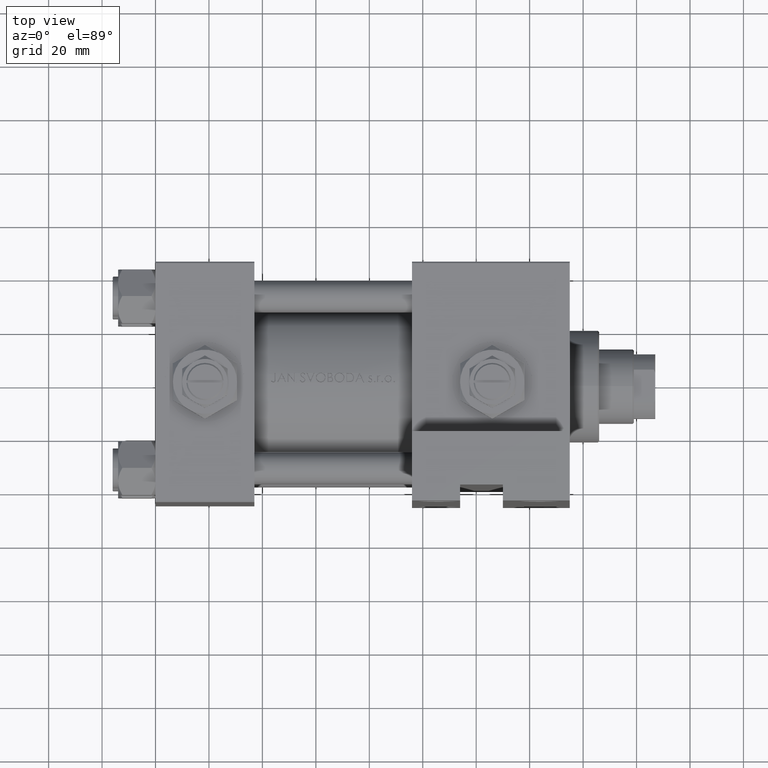
[diagram: clean part render]
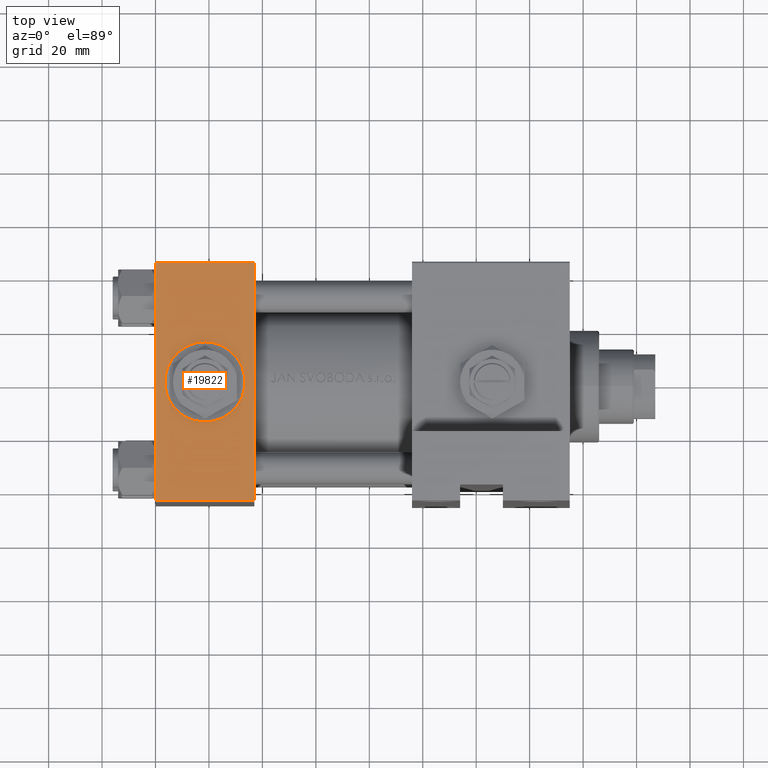
[diagram: same view with one face highlighted and labeled with its STEP entity id]
A machine part, top view. The second image highlights one B-rep face of the part: STEP entity #19822.
In plain terms, the highlighted planar face has unit normal (0, 0, -1).
Its self-contained STEP definition (entity closure, byte-faithful):
#3 = CIRCLE ( 'NONE', #20048, 15.00000000000000178 ) ;
#2085 = DIRECTION ( 'NONE',  ( 0.000000000000000000, -1.000000000000000000, -8.673617379884036705E-17 ) ) ;
#3081 = DIRECTION ( 'NONE',  ( 0.000000000000000000, 0.000000000000000000, -1.000000000000000000 ) ) ;
#3483 = DIRECTION ( 'NONE',  ( 0.000000000000000000, -7.709882115452478166E-17, 1.000000000000000000 ) ) ;
#6204 = LINE ( 'NONE', #47944, #9113 ) ;
#7243 = CARTESIAN_POINT ( 'NONE',  ( 18.50000000000000000, -45.00000000000000000, -3.469446951953614978E-15 ) ) ;
#7399 = DIRECTION ( 'NONE',  ( 0.000000000000000000, 7.709882115452476934E-17, -1.000000000000000000 ) ) ;
#8211 = CARTESIAN_POINT ( 'NONE',  ( 0.000000000000000000, -45.00000000000000000, -44.49999999999995737 ) ) ;
#8221 = DIRECTION ( 'NONE',  ( 1.000000000000000000, 0.000000000000000000, 0.000000000000000000 ) ) ;
#8738 = VERTEX_POINT ( 'NONE', #31204 ) ;
#9113 = VECTOR ( 'NONE', #28802, 1000.000000000000000 ) ;
#11272 = VECTOR ( 'NONE', #8221, 1000.000000000000000 ) ;
#11522 = AXIS2_PLACEMENT_3D ( 'NONE', #7243, #45700, #26581 ) ;
#11811 = EDGE_CURVE ( 'NONE', #28439, #49443, #14765, .T. ) ;
#11994 = LINE ( 'NONE', #35602, #11272 ) ;
#12074 = EDGE_CURVE ( 'NONE', #8738, #12216, #6204, .T. ) ;
#12216 = VERTEX_POINT ( 'NONE', #23251 ) ;
#13578 = EDGE_LOOP ( 'NONE', ( #20309, #25452 ) ) ;
#14765 = CIRCLE ( 'NONE', #11522, 15.00000000000000178 ) ;
#15757 = VERTEX_POINT ( 'NONE', #8211 ) ;
#16749 = EDGE_CURVE ( 'NONE', #15757, #12216, #11994, .T. ) ;
#19822 = ADVANCED_FACE ( 'NONE', ( #34868, #34372 ), #37888, .F. ) ;
#20048 = AXIS2_PLACEMENT_3D ( 'NONE', #33482, #2085, #3081 ) ;
#20309 = ORIENTED_EDGE ( 'NONE', *, *, #11811, .F. ) ;
#20836 = EDGE_CURVE ( 'NONE', #49443, #28439, #3, .T. ) ;
#22104 = ORIENTED_EDGE ( 'NONE', *, *, #16749, .T. ) ;
#23061 = CARTESIAN_POINT ( 'NONE',  ( 37.00000000000000000, -45.00000000000000711, 45.00000000000000000 ) ) ;
#23208 = ORIENTED_EDGE ( 'NONE', *, *, #45022, .T. ) ;
#23251 = CARTESIAN_POINT ( 'NONE',  ( 37.00000000000000000, -45.00000000000000000, -44.49999999999995737 ) ) ;
#23967 = ORIENTED_EDGE ( 'NONE', *, *, #25186, .T. ) ;
#24517 = VERTEX_POINT ( 'NONE', #32174 ) ;
#25186 = EDGE_CURVE ( 'NONE', #8738, #24517, #47615, .T. ) ;
#25452 = ORIENTED_EDGE ( 'NONE', *, *, #20836, .F. ) ;
#26581 = DIRECTION ( 'NONE',  ( 0.000000000000000000, 0.000000000000000000, -1.000000000000000000 ) ) ;
#26611 = VECTOR ( 'NONE', #7399, 1000.000000000000000 ) ;
#27186 = AXIS2_PLACEMENT_3D ( 'NONE', #23061, #30841, #3483 ) ;
#28439 = VERTEX_POINT ( 'NONE', #43640 ) ;
#28723 = ORIENTED_EDGE ( 'NONE', *, *, #12074, .F. ) ;
#28802 = DIRECTION ( 'NONE',  ( 0.000000000000000000, 7.709882115452476934E-17, -1.000000000000000000 ) ) ;
#30841 = DIRECTION ( 'NONE',  ( -0.000000000000000000, 1.000000000000000000, 7.709882115452478166E-17 ) ) ;
#31204 = CARTESIAN_POINT ( 'NONE',  ( 37.00000000000000000, -45.00000000000000711, 44.49999999999997158 ) ) ;
#32174 = CARTESIAN_POINT ( 'NONE',  ( 0.000000000000000000, -45.00000000000000711, 44.49999999999997158 ) ) ;
#33482 = CARTESIAN_POINT ( 'NONE',  ( 18.50000000000000000, -45.00000000000000000, -3.469446951953614978E-15 ) ) ;
#34124 = EDGE_LOOP ( 'NONE', ( #23208, #22104, #28723, #23967 ) ) ;
#34372 = FACE_OUTER_BOUND ( 'NONE', #34124, .T. ) ;
#34868 = FACE_BOUND ( 'NONE', #13578, .T. ) ;
#34942 = VECTOR ( 'NONE', #43577, 1000.000000000000000 ) ;
#35602 = CARTESIAN_POINT ( 'NONE',  ( 37.00000000000000000, -45.00000000000000000, -44.49999999999998579 ) ) ;
#37888 = PLANE ( 'NONE',  #27186 ) ;
#38789 = CARTESIAN_POINT ( 'NONE',  ( 0.000000000000000000, -45.00000000000000711, 45.00000000000000000 ) ) ;
#41760 = CARTESIAN_POINT ( 'NONE',  ( 18.50000000000000355, -45.00000000000000000, 14.99999999999999822 ) ) ;
#43577 = DIRECTION ( 'NONE',  ( -1.000000000000000000, 0.000000000000000000, 0.000000000000000000 ) ) ;
#43640 = CARTESIAN_POINT ( 'NONE',  ( 18.50000000000000000, -45.00000000000000000, -15.00000000000000533 ) ) ;
#45022 = EDGE_CURVE ( 'NONE', #24517, #15757, #49639, .T. ) ;
#45700 = DIRECTION ( 'NONE',  ( 0.000000000000000000, -1.000000000000000000, -8.673617379884036705E-17 ) ) ;
#47361 = CARTESIAN_POINT ( 'NONE',  ( 37.00000000000000000, -45.00000000000000711, 44.49999999999997158 ) ) ;
#47615 = LINE ( 'NONE', #47361, #34942 ) ;
#47944 = CARTESIAN_POINT ( 'NONE',  ( 37.00000000000000000, -45.00000000000000711, 45.00000000000000000 ) ) ;
#49443 = VERTEX_POINT ( 'NONE', #41760 ) ;
#49639 = LINE ( 'NONE', #38789, #26611 ) ;